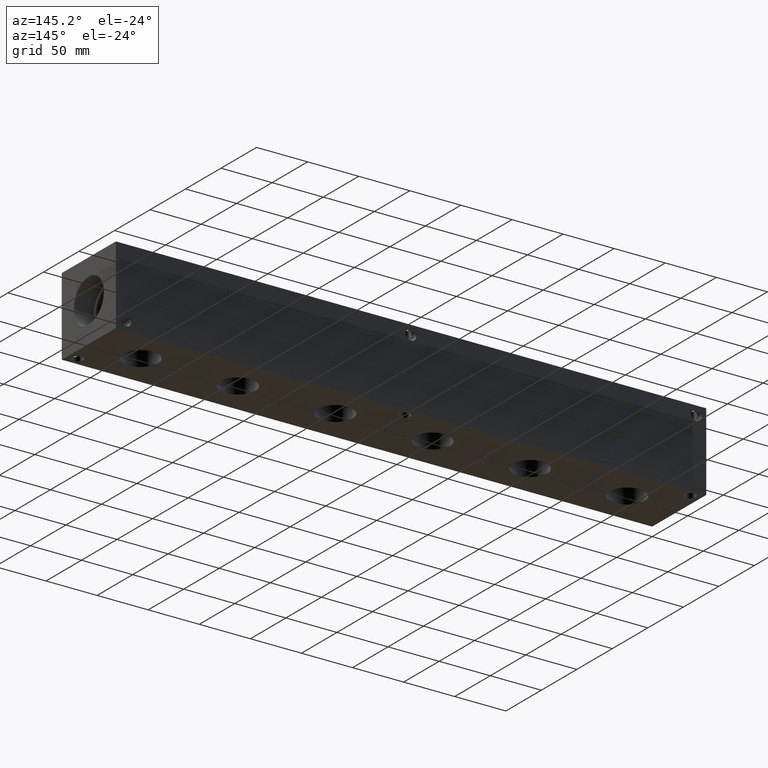
[diagram: clean part render]
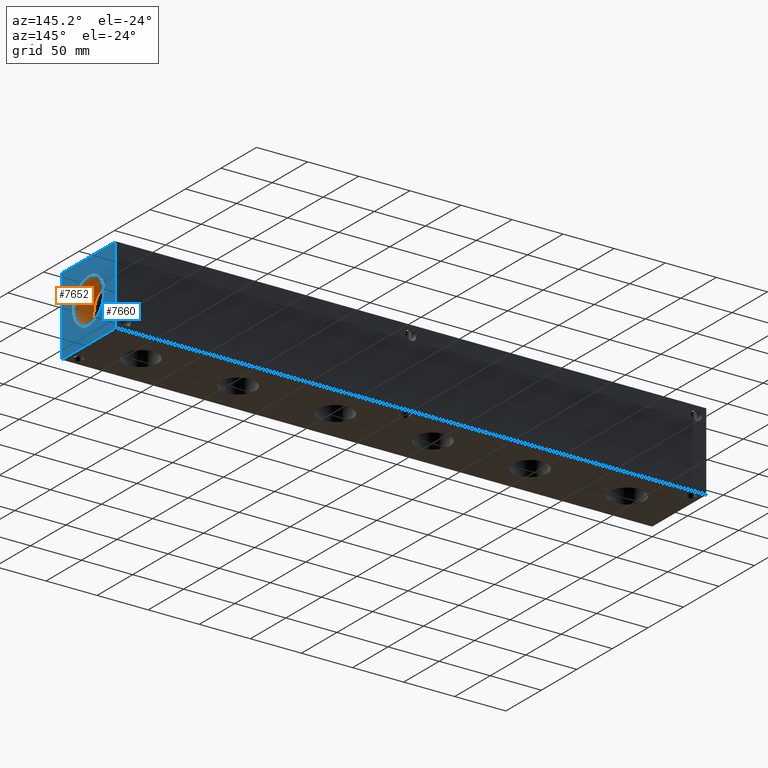
[diagram: same view with the hole feature highlighted: cylindrical wall and planar end face, labeled with their STEP entity ids]
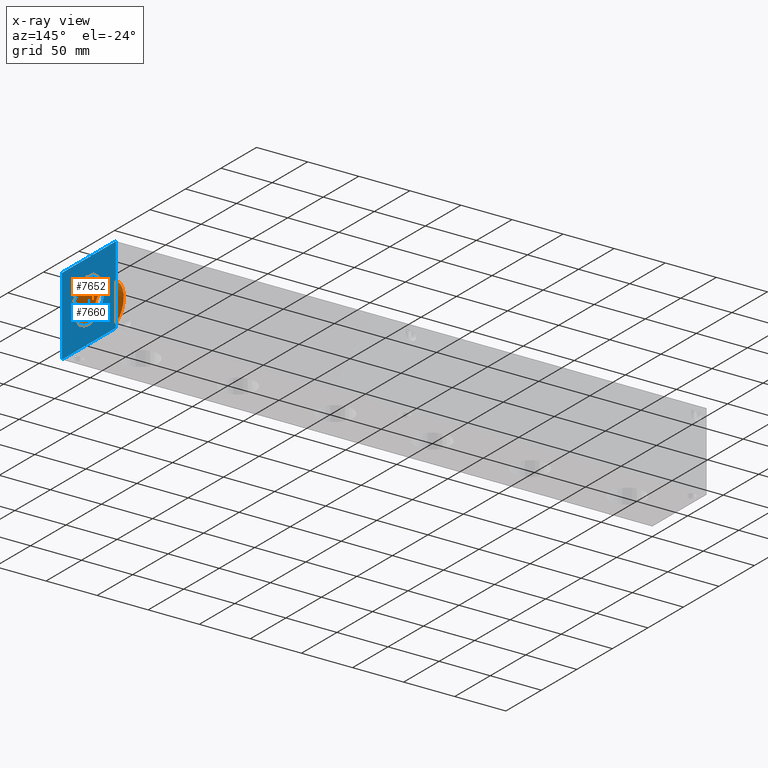
[diagram: x-ray of the same camera — body ghosted, the hole faces saturated]
A machine part, auxiliary view. The highlighted faces form one hole feature of diameter 42.4688 mm: the cylindrical wall (entity #7652, orange) and its adjacent planar end face (entity #7660, blue) — they share a circular edge in the B-rep.
The next image is the same camera in x-ray (body ghosted, the hole faces saturated) — the bore reads through the body.
Wall:
#76=CYLINDRICAL_SURFACE('',#8075,21.2344);
#184=CIRCLE('',#8072,21.2344);
#185=CIRCLE('',#8073,21.2344);
#187=CIRCLE('',#8076,21.2344);
#188=CIRCLE('',#8077,21.2344);
#878=FACE_OUTER_BOUND('',#1318,.T.);
#1318=EDGE_LOOP('',(#6790,#6791,#6792,#6793,#6794,#6795));
#2061=LINE('',#13062,#2787);
#2787=VECTOR('',#9611,21.2344);
#3697=VERTEX_POINT('',#13051);
#3698=VERTEX_POINT('',#13052);
#3700=VERTEX_POINT('',#13058);
#3701=VERTEX_POINT('',#13059);
#4741=EDGE_CURVE('',#3697,#3698,#184,.T.);
#4742=EDGE_CURVE('',#3698,#3697,#185,.T.);
#4744=EDGE_CURVE('',#3700,#3701,#187,.T.);
#4745=EDGE_CURVE('',#3701,#3700,#188,.T.);
#4746=EDGE_CURVE('',#3701,#3698,#2061,.T.);
#6790=ORIENTED_EDGE('',*,*,#4744,.F.);
#6791=ORIENTED_EDGE('',*,*,#4745,.F.);
#6792=ORIENTED_EDGE('',*,*,#4746,.T.);
#6793=ORIENTED_EDGE('',*,*,#4741,.F.);
#6794=ORIENTED_EDGE('',*,*,#4742,.F.);
#6795=ORIENTED_EDGE('',*,*,#4746,.F.);
#7652=ADVANCED_FACE('',(#878),#76,.F.);
#8072=AXIS2_PLACEMENT_3D('',#13053,#9599,#9600);
#8073=AXIS2_PLACEMENT_3D('',#13054,#9601,#9602);
#8075=AXIS2_PLACEMENT_3D('',#13057,#9605,#9606);
#8076=AXIS2_PLACEMENT_3D('',#13060,#9607,#9608);
#8077=AXIS2_PLACEMENT_3D('',#13061,#9609,#9610);
#9599=DIRECTION('center_axis',(1.,0.,0.));
#9600=DIRECTION('ref_axis',(0.,1.,0.));
#9601=DIRECTION('center_axis',(1.,0.,0.));
#9602=DIRECTION('ref_axis',(0.,1.,0.));
#9605=DIRECTION('center_axis',(1.,0.,0.));
#9606=DIRECTION('ref_axis',(0.,1.,0.));
#9607=DIRECTION('center_axis',(-1.,0.,0.));
#9608=DIRECTION('ref_axis',(0.,1.,0.));
#9609=DIRECTION('center_axis',(-1.,0.,0.));
#9610=DIRECTION('ref_axis',(0.,1.,0.));
#9611=DIRECTION('',(-1.,0.,0.));
#13051=CARTESIAN_POINT('',(558.3428,59.3344,38.1));
#13052=CARTESIAN_POINT('',(558.3428,16.8656,38.1));
#13053=CARTESIAN_POINT('Origin',(558.3428,38.1,38.1));
#13054=CARTESIAN_POINT('Origin',(558.3428,38.1,38.1));
#13057=CARTESIAN_POINT('Origin',(568.0964,38.1,38.1));
#13058=CARTESIAN_POINT('',(577.85,59.3344,38.1));
#13059=CARTESIAN_POINT('',(577.85,16.8656,38.1));
#13060=CARTESIAN_POINT('Origin',(577.85,38.1,38.1));
#13061=CARTESIAN_POINT('Origin',(577.85,38.1,38.1));
#13062=CARTESIAN_POINT('',(568.0964,16.8656,38.1));
End face:
#187=CIRCLE('',#8076,21.2344);
#188=CIRCLE('',#8077,21.2344);
#252=FACE_BOUND('',#1332,.T.);
#497=PLANE('',#8092);
#886=FACE_OUTER_BOUND('',#1331,.T.);
#1331=EDGE_LOOP('',(#6832,#6833,#6834,#6835));
#1332=EDGE_LOOP('',(#6836,#6837));
#1632=LINE('',#11789,#2358);
#2070=LINE('',#13096,#2796);
#2071=LINE('',#13099,#2797);
#2072=LINE('',#13100,#2798);
#2358=VECTOR('',#8532,10.);
#2796=VECTOR('',#9648,10.);
#2797=VECTOR('',#9651,10.);
#2798=VECTOR('',#9652,10.);
#3309=VERTEX_POINT('',#11786);
#3310=VERTEX_POINT('',#11788);
#3700=VERTEX_POINT('',#13058);
#3701=VERTEX_POINT('',#13059);
#3712=VERTEX_POINT('',#13094);
#3713=VERTEX_POINT('',#13098);
#4180=EDGE_CURVE('',#3309,#3310,#1632,.T.);
#4744=EDGE_CURVE('',#3700,#3701,#187,.T.);
#4745=EDGE_CURVE('',#3701,#3700,#188,.T.);
#4762=EDGE_CURVE('',#3712,#3310,#2070,.T.);
#4763=EDGE_CURVE('',#3713,#3712,#2071,.T.);
#4764=EDGE_CURVE('',#3713,#3309,#2072,.T.);
#6832=ORIENTED_EDGE('',*,*,#4763,.T.);
#6833=ORIENTED_EDGE('',*,*,#4762,.T.);
#6834=ORIENTED_EDGE('',*,*,#4180,.F.);
#6835=ORIENTED_EDGE('',*,*,#4764,.F.);
#6836=ORIENTED_EDGE('',*,*,#4744,.T.);
#6837=ORIENTED_EDGE('',*,*,#4745,.T.);
#7660=ADVANCED_FACE('',(#886,#252),#497,.T.);
#8076=AXIS2_PLACEMENT_3D('',#13060,#9607,#9608);
#8077=AXIS2_PLACEMENT_3D('',#13061,#9609,#9610);
#8092=AXIS2_PLACEMENT_3D('',#13097,#9649,#9650);
#8532=DIRECTION('',(0.,1.,0.));
#9607=DIRECTION('center_axis',(-1.,0.,0.));
#9608=DIRECTION('ref_axis',(0.,1.,0.));
#9609=DIRECTION('center_axis',(-1.,0.,0.));
#9610=DIRECTION('ref_axis',(0.,1.,0.));
#9648=DIRECTION('',(0.,0.,1.));
#9649=DIRECTION('center_axis',(1.,0.,0.));
#9650=DIRECTION('ref_axis',(0.,1.,0.));
#9651=DIRECTION('',(0.,1.,0.));
#9652=DIRECTION('',(0.,0.,1.));
#11786=CARTESIAN_POINT('',(577.85,0.,76.2));
#11788=CARTESIAN_POINT('',(577.85,76.2,76.2));
#11789=CARTESIAN_POINT('',(577.85,0.,76.2));
#13058=CARTESIAN_POINT('',(577.85,59.3344,38.1));
#13059=CARTESIAN_POINT('',(577.85,16.8656,38.1));
#13060=CARTESIAN_POINT('Origin',(577.85,38.1,38.1));
#13061=CARTESIAN_POINT('Origin',(577.85,38.1,38.1));
#13094=CARTESIAN_POINT('',(577.85,76.2,0.));
#13096=CARTESIAN_POINT('',(577.85,76.2,0.));
#13097=CARTESIAN_POINT('Origin',(577.85,0.,0.));
#13098=CARTESIAN_POINT('',(577.85,0.,0.));
#13099=CARTESIAN_POINT('',(577.85,0.,0.));
#13100=CARTESIAN_POINT('',(577.85,0.,0.));